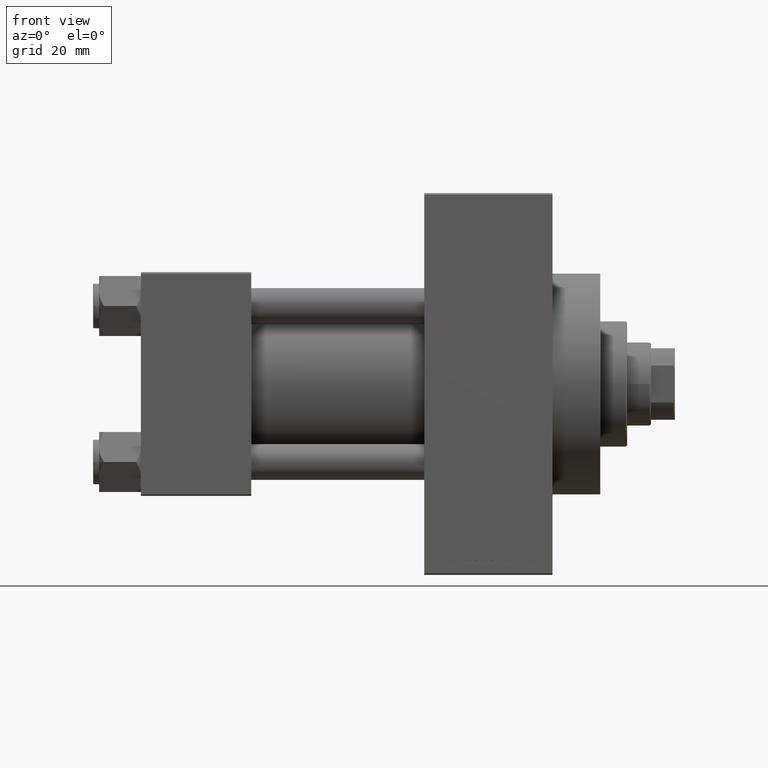
[diagram: clean part render]
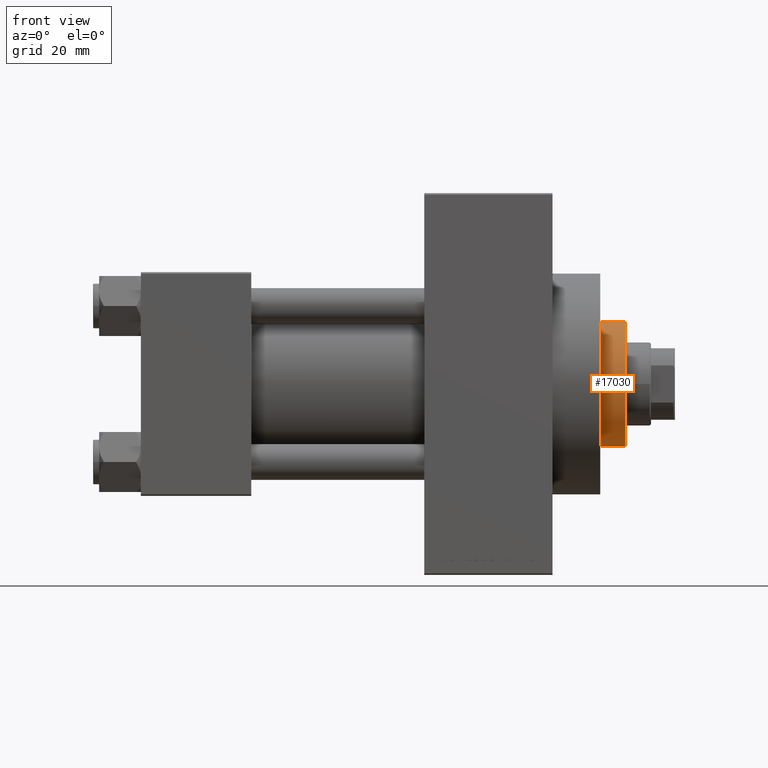
[diagram: same view with one face highlighted and labeled with its STEP entity id]
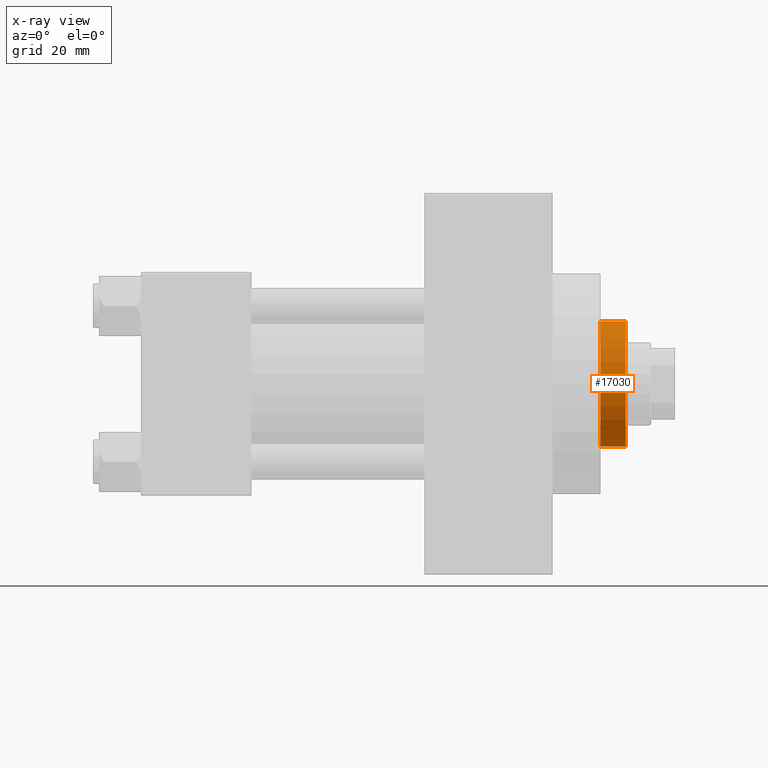
[diagram: x-ray of the same camera — body ghosted, the highlighted face saturated]
A machine part, front view. The second image highlights one B-rep face of the part: STEP entity #17030.
The next image is the same camera in x-ray: the body ghosted, the highlighted face saturated — about 0% of this face is hidden behind the body in this view.
In plain terms, the highlighted cylindrical surface (partial cylindrical patch) has radius 21 mm, axis along (-1, 0, 0).
Its self-contained STEP definition (entity closure, byte-faithful):
#730 = CARTESIAN_POINT ( 'NONE',  ( -21.00000000000000000, 0.000000000000000000, 43.25999999999999801 ) ) ;
#1249 = CIRCLE ( 'NONE', #46966, 21.00000000000000000 ) ;
#4986 = VERTEX_POINT ( 'NONE', #44883 ) ;
#5200 = EDGE_CURVE ( 'NONE', #4986, #31800, #22401, .T. ) ;
#5340 = DIRECTION ( 'NONE',  ( 1.000000000000000000, 0.000000000000000000, 0.000000000000000000 ) ) ;
#6241 = ORIENTED_EDGE ( 'NONE', *, *, #45051, .T. ) ;
#6344 = CARTESIAN_POINT ( 'NONE',  ( -21.00000000000000000, 0.000000000000000000, 52.25999999999999801 ) ) ;
#6365 = EDGE_LOOP ( 'NONE', ( #6241, #37746, #44220, #27225 ) ) ;
#9022 = CARTESIAN_POINT ( 'NONE',  ( 0.000000000000000000, 0.000000000000000000, 52.25999999999999801 ) ) ;
#12982 = CIRCLE ( 'NONE', #29498, 21.00000000000000000 ) ;
#15709 = CARTESIAN_POINT ( 'NONE',  ( 21.00000000000000000, 2.571758278209441661E-15, 52.25999999999999801 ) ) ;
#17030 = ADVANCED_FACE ( 'NONE', ( #26954 ), #34579, .T. ) ;
#19519 = EDGE_CURVE ( 'NONE', #19734, #23961, #45748, .T. ) ;
#19734 = VERTEX_POINT ( 'NONE', #39226 ) ;
#20139 = CARTESIAN_POINT ( 'NONE',  ( 0.000000000000000000, 0.000000000000000000, 51.75999999999999801 ) ) ;
#22401 = LINE ( 'NONE', #15709, #42847 ) ;
#23961 = VERTEX_POINT ( 'NONE', #730 ) ;
#24077 = EDGE_CURVE ( 'NONE', #31800, #23961, #12982, .T. ) ;
#26477 = DIRECTION ( 'NONE',  ( -0.000000000000000000, -0.000000000000000000, -1.000000000000000000 ) ) ;
#26954 = FACE_OUTER_BOUND ( 'NONE', #6365, .T. ) ;
#27185 = DIRECTION ( 'NONE',  ( -1.000000000000000000, 0.000000000000000000, 0.000000000000000000 ) ) ;
#27225 = ORIENTED_EDGE ( 'NONE', *, *, #19519, .F. ) ;
#27482 = CARTESIAN_POINT ( 'NONE',  ( 21.00000000000000000, 2.571758278209441661E-15, 43.25999999999999801 ) ) ;
#29498 = AXIS2_PLACEMENT_3D ( 'NONE', #42250, #38197, #31520 ) ;
#31520 = DIRECTION ( 'NONE',  ( 1.000000000000000000, 0.000000000000000000, 0.000000000000000000 ) ) ;
#31800 = VERTEX_POINT ( 'NONE', #27482 ) ;
#33476 = AXIS2_PLACEMENT_3D ( 'NONE', #9022, #26477, #27185 ) ;
#34579 = CYLINDRICAL_SURFACE ( 'NONE', #33476, 21.00000000000000000 ) ;
#37562 = DIRECTION ( 'NONE',  ( 0.000000000000000000, 0.000000000000000000, -1.000000000000000000 ) ) ;
#37746 = ORIENTED_EDGE ( 'NONE', *, *, #5200, .T. ) ;
#38197 = DIRECTION ( 'NONE',  ( 0.000000000000000000, 0.000000000000000000, 1.000000000000000000 ) ) ;
#39226 = CARTESIAN_POINT ( 'NONE',  ( -21.00000000000000000, 0.000000000000000000, 51.75999999999999801 ) ) ;
#42250 = CARTESIAN_POINT ( 'NONE',  ( 0.000000000000000000, 0.000000000000000000, 43.25999999999999801 ) ) ;
#42847 = VECTOR ( 'NONE', #45061, 1000.000000000000000 ) ;
#42868 = DIRECTION ( 'NONE',  ( -0.000000000000000000, -0.000000000000000000, -1.000000000000000000 ) ) ;
#44220 = ORIENTED_EDGE ( 'NONE', *, *, #24077, .T. ) ;
#44883 = CARTESIAN_POINT ( 'NONE',  ( 21.00000000000000000, 2.571758278209441661E-15, 51.75999999999999801 ) ) ;
#45051 = EDGE_CURVE ( 'NONE', #19734, #4986, #1249, .T. ) ;
#45061 = DIRECTION ( 'NONE',  ( -0.000000000000000000, -0.000000000000000000, -1.000000000000000000 ) ) ;
#45605 = VECTOR ( 'NONE', #42868, 1000.000000000000000 ) ;
#45748 = LINE ( 'NONE', #6344, #45605 ) ;
#46966 = AXIS2_PLACEMENT_3D ( 'NONE', #20139, #37562, #5340 ) ;